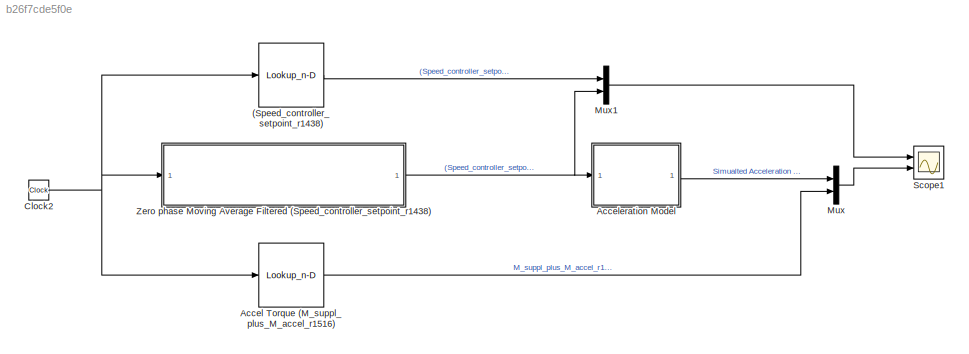
MODEL slx_b26f7cde5f0e
KIND model
CONFIG AbsTol = auto
CONFIG EnableMultiTasking = off
CONFIG FixedStep = auto
CONFIG MaxStep = 0.001
CONFIG MinStep = auto
CONFIG RelTol = 1e-3
CONFIG SampleTimeConstraint = Unconstrained
CONFIG SolverName = VariableStepAuto
CONFIG StartTime = 0.0
CONFIG StopTime = 46
BLOCK [Lookup_n-D] (Speed_controller_setpoint_r1438)
  BreakpointsForDimension1 = test398_20210427_190936.fileinfo.Time
  InputPortMap = u0
  InternalRulePriority = Speed
  NumberOfTableDimensions = 1
  Ports = [1, 1]
  RndMeth = Simplest
  Table = test398_20210427_190936.Drive_2.Speed_controller_setpoint_r1438.data
BLOCK [Lookup_n-D] Accel Torque (M_suppl_plus_M_accel_r1516)
  BreakpointsForDimension1 = test398_20210427_190936.fileinfo.Time
  InputPortMap = u0
  InternalRulePriority = Speed
  NumberOfTableDimensions = 1
  Ports = [1, 1]
  RndMeth = Simplest
  Table = test398_20210427_190936.Drive_2.M_suppl_plus_M_accel_r1516.data
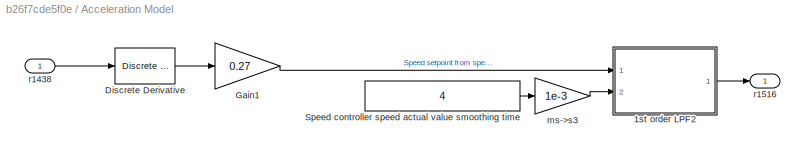
BLOCK [SubSystem] Acceleration Model 
  Ports = [1, 1]
  RequestExecContextInheritance = off
  SystemSampleTime = 0.001
  TreatAsAtomicUnit = on
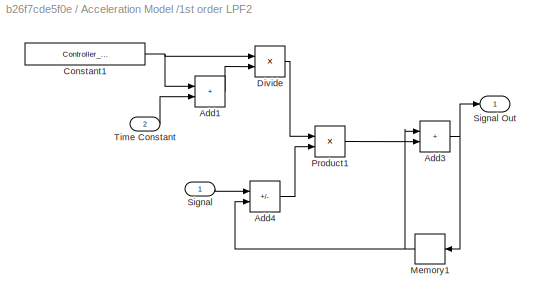
BLOCK [SubSystem] Acceleration Model /1st order LPF2
  Ports = [2, 1]
  RequestExecContextInheritance = off
BLOCK [Sum] Acceleration Model /1st order LPF2/Add1
  IconShape = rectangular
  Ports = [2, 1]
BLOCK [Sum] Acceleration Model /1st order LPF2/Add3
  IconShape = rectangular
  Ports = [2, 1]
BLOCK [Sum] Acceleration Model /1st order LPF2/Add4
  IconShape = rectangular
  Inputs = +-
  Ports = [2, 1]
BLOCK [Constant] Acceleration Model /1st order LPF2/Constant1
  Value = Controller_sampleTime
BLOCK [Product] Acceleration Model /1st order LPF2/Divide
  Inputs = */
  Ports = [2, 1]
BLOCK [Memory] Acceleration Model /1st order LPF2/Memory1
  InheritSampleTime = on
  InitialCondition = Yo
BLOCK [Product] Acceleration Model /1st order LPF2/Product1
  Ports = [2, 1]
  RndMeth = Zero
BLOCK [Inport] Acceleration Model /1st order LPF2/Signal
BLOCK [Outport] Acceleration Model /1st order LPF2/Signal Out
  VectorParamsAs1DForOutWhenUnconnected = off
BLOCK [Inport] Acceleration Model /1st order LPF2/Time Constant
  Port = 2
BLOCK [Reference] Acceleration Model /Discrete Derivative  REF=simulink/Discrete/Discrete Derivative
  Ports = [1, 1]
  SourceBlock = simulink/Discrete/Discrete Derivative
  SourceProductBaseCode = SL
  SourceType = Discrete Derivative
BLOCK [Gain] Acceleration Model /Gain1
  Gain = 0.27
BLOCK [Constant] Acceleration Model /Speed controller speed actual value smoothing time
  Value = 4
BLOCK [Gain] Acceleration Model /ms->s3
  Gain = 1e-3
BLOCK [Inport] Acceleration Model /r1438
BLOCK [Outport] Acceleration Model /r1516
BLOCK [Clock] Clock2
BLOCK [Mux] Mux
  DisplayOption = bar
  Inputs = 2
  Ports = [2, 1]
BLOCK [Mux] Mux1
  DisplayOption = bar
  Inputs = 2
  Ports = [2, 1]
BLOCK [Scope] Scope1
  Floating = off
  NumInputPorts = 2
  Ports = [2]
  ScopeSpecificationString = Simulink.scopes.TimeScopeBlockCfg('CurrentConfiguration', extmgr.ConfigurationSet(extmgr.Configuration('Core','General UI',true),extmgr.Configuration('Core','Source UI',true),extmgr.Configuration('Sources','WiredSimulink',true,'DataLoggingVariableName','ScopeData1'),extmgr.Configuration('Visuals','Time Domain',true,'SerializedDisplays',{struct('MinYLimReal','-1885.75071','MaxYLimReal','249.51805',...<+2539ch>
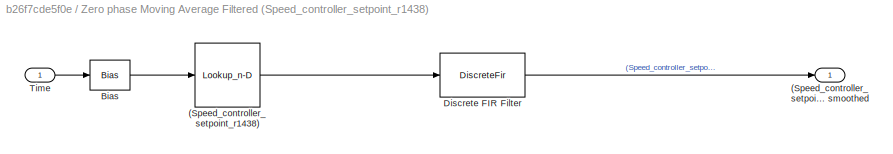
BLOCK [SubSystem] Zero phase Moving Average Filtered (Speed_controller_setpoint_r1438)
  Ports = [1, 1]
  RequestExecContextInheritance = off
  SystemSampleTime = 0.001
  TreatAsAtomicUnit = on
BLOCK [Lookup_n-D] Zero phase Moving Average Filtered (Speed_controller_setpoint_r1438)/(Speed_controller_setpoint_r1438)
  BreakpointsForDimension1 = test398_20210427_190936.fileinfo.Time
  InputPortMap = u0
  InternalRulePriority = Speed
  NumberOfTableDimensions = 1
  Ports = [1, 1]
  RndMeth = Simplest
  Table = test398_20210427_190936.Drive_2.Speed_controller_setpoint_r1438.data
BLOCK [Outport] Zero phase Moving Average Filtered (Speed_controller_setpoint_r1438)/(Speed_controller_setpoint_r1438) smoothed
BLOCK [Bias] Zero phase Moving Average Filtered (Speed_controller_setpoint_r1438)/Bias
  Bias = +0.1
  SaturateOnIntegerOverflow = off
BLOCK [DiscreteFir] Zero phase Moving Average Filtered (Speed_controller_setpoint_r1438)/Discrete FIR Filter
  Coefficients = ones(1,200)*0.005
  InputPortMap = u0
  OutputPortMap = o0
  Ports = [1, 1]
BLOCK [Inport] Zero phase Moving Average Filtered (Speed_controller_setpoint_r1438)/Time
LINE (Speed_controller_setpoint_r1438):1 -> Mux1:1
LINE Accel Torque (M_suppl_plus_M_accel_r1516):1 -> Mux:2
LINE Acceleration Model /1st order LPF2/Add1:1 -> Acceleration Model /1st order LPF2/Divide:2
NET Acceleration Model /1st order LPF2/Add3:1 -> Acceleration Model /1st order LPF2/Memory1:1, Acceleration Model /1st order LPF2/Signal Out:1
LINE Acceleration Model /1st order LPF2/Add4:1 -> Acceleration Model /1st order LPF2/Product1:2
NET Acceleration Model /1st order LPF2/Constant1:1 -> Acceleration Model /1st order LPF2/Add1:1, Acceleration Model /1st order LPF2/Divide:1
LINE Acceleration Model /1st order LPF2/Divide:1 -> Acceleration Model /1st order LPF2/Product1:1
NET Acceleration Model /1st order LPF2/Memory1:1 -> Acceleration Model /1st order LPF2/Add3:1, Acceleration Model /1st order LPF2/Add4:2
LINE Acceleration Model /1st order LPF2/Product1:1 -> Acceleration Model /1st order LPF2/Add3:2
LINE Acceleration Model /1st order LPF2/Signal:1 -> Acceleration Model /1st order LPF2/Add4:1
LINE Acceleration Model /1st order LPF2/Time Constant:1 -> Acceleration Model /1st order LPF2/Add1:2
LINE Acceleration Model /1st order LPF2:1 -> Acceleration Model /r1516:1
LINE Acceleration Model /Discrete Derivative:1 -> Acceleration Model /Gain1:1
LINE Acceleration Model /Gain1:1 -> Acceleration Model /1st order LPF2:1
LINE Acceleration Model /Speed controller speed actual value smoothing time:1 -> Acceleration Model /ms->s3:1
LINE Acceleration Model /ms->s3:1 -> Acceleration Model /1st order LPF2:2
LINE Acceleration Model /r1438:1 -> Acceleration Model /Discrete Derivative:1
LINE Acceleration Model :1 -> Mux:1
NET Clock2:1 -> (Speed_controller_setpoint_r1438):1, Accel Torque (M_suppl_plus_M_accel_r1516):1, Zero phase Moving Average Filtered (Speed_controller_setpoint_r1438):1
LINE Mux1:1 -> Scope1:1
LINE Mux:1 -> Scope1:2
LINE Zero phase Moving Average Filtered (Speed_controller_setpoint_r1438)/(Speed_controller_setpoint_r1438):1 -> Zero phase Moving Average Filtered (Speed_controller_setpoint_r1438)/Discrete FIR Filter:1
LINE Zero phase Moving Average Filtered (Speed_controller_setpoint_r1438)/Bias:1 -> Zero phase Moving Average Filtered (Speed_controller_setpoint_r1438)/(Speed_controller_setpoint_r1438):1
LINE Zero phase Moving Average Filtered (Speed_controller_setpoint_r1438)/Discrete FIR Filter:1 -> Zero phase Moving Average Filtered (Speed_controller_setpoint_r1438)/(Speed_controller_setpoint_r1438) smoothed:1
LINE Zero phase Moving Average Filtered (Speed_controller_setpoint_r1438)/Time:1 -> Zero phase Moving Average Filtered (Speed_controller_setpoint_r1438)/Bias:1
NET Zero phase Moving Average Filtered (Speed_controller_setpoint_r1438):1 -> Acceleration Model :1, Mux1:2
note: NET lines group one-source signal fan-out (src -> all destinations, sorted); 1:1 wires keep LINE
